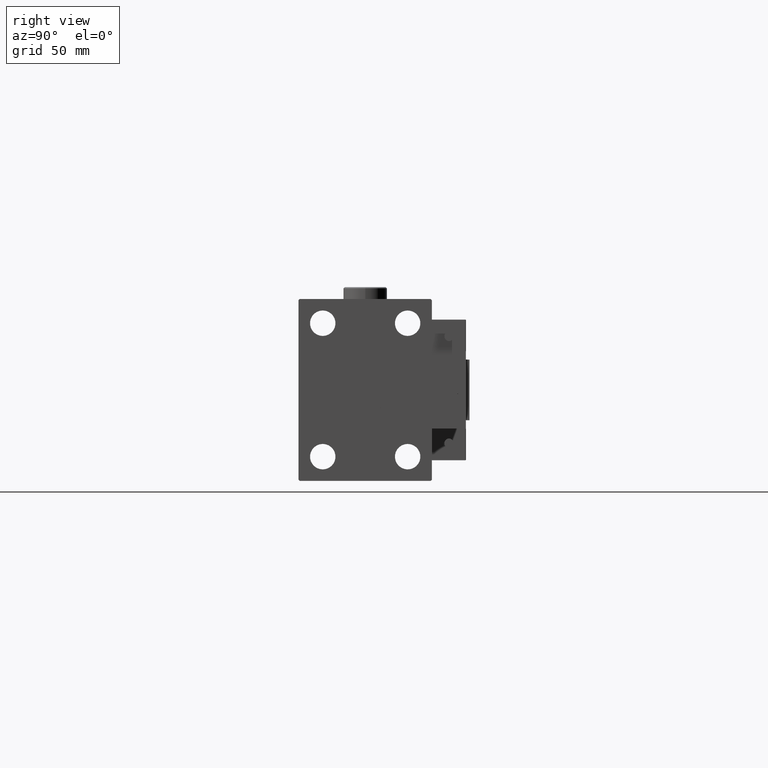
[diagram: clean part render]
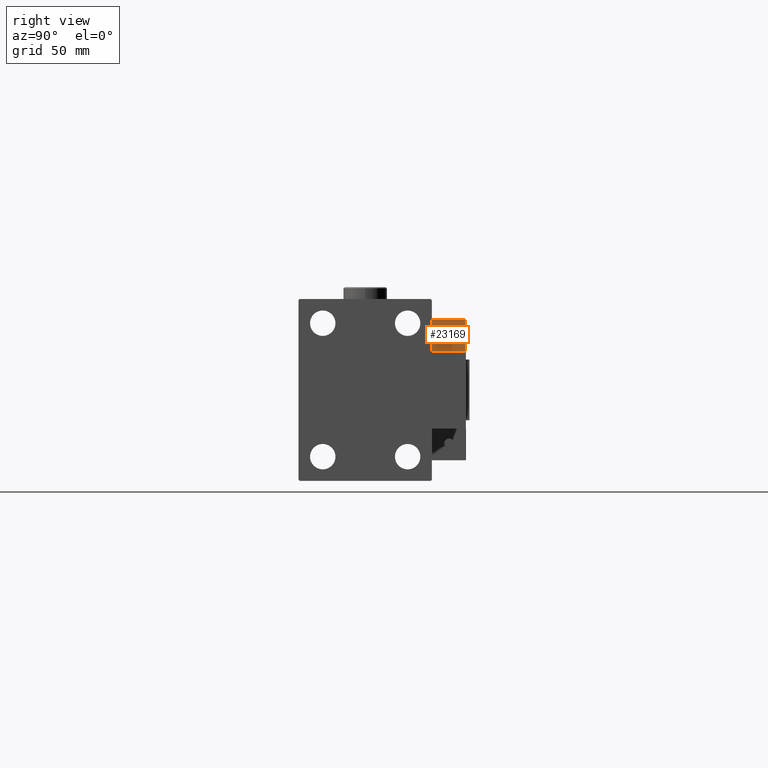
[diagram: same view with one face highlighted and labeled with its STEP entity id]
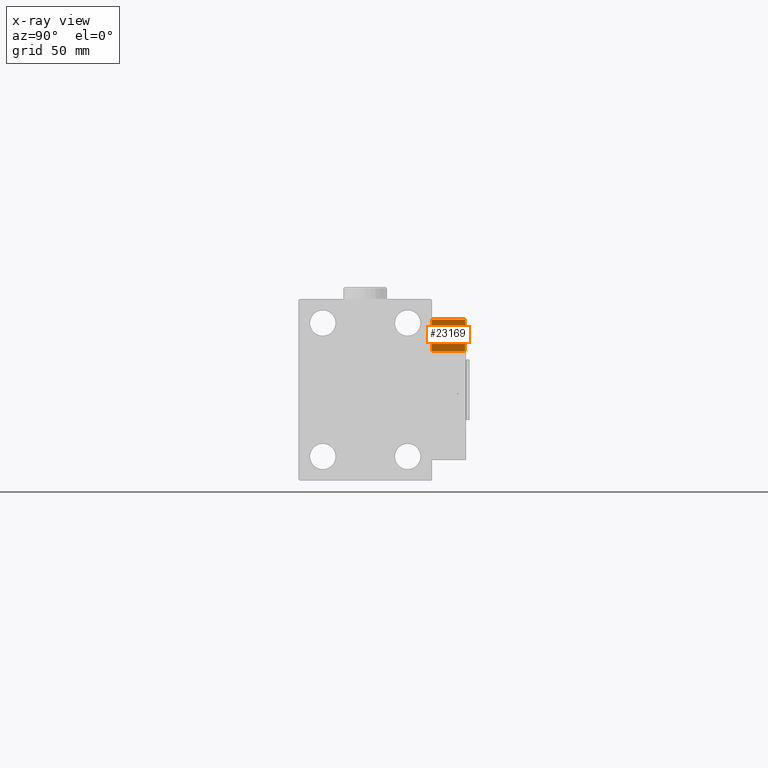
[diagram: x-ray of the same camera — body ghosted, the highlighted face saturated]
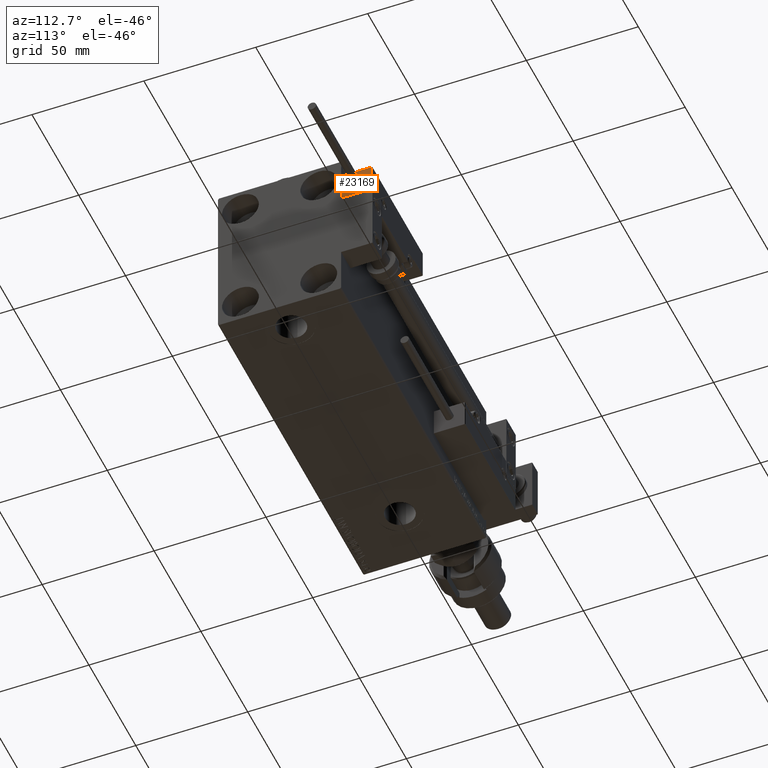
[diagram: same view with one face highlighted and labeled with its STEP entity id]
A machine part, right view. The second image highlights one B-rep face of the part: STEP entity #23169.
The next image is the same camera in x-ray: the body ghosted, the highlighted face saturated — about 6% of this face is hidden behind the body in this view.
A second angle (auxiliary view) of the same face is appended — the face is thin or edge-on in the first view.
In plain terms, the highlighted planar face has unit normal (-1, 0, 0).
Its self-contained STEP definition (entity closure, byte-faithful):
#214 = LINE ( 'NONE', #34318, #27301 ) ;
#811 = EDGE_LOOP ( 'NONE', ( #27473, #13237, #12007, #39391 ) ) ;
#855 = VECTOR ( 'NONE', #11933, 1000.000000000000000 ) ;
#6223 = VERTEX_POINT ( 'NONE', #8670 ) ;
#6402 = CARTESIAN_POINT ( 'NONE',  ( -26.99999999999993605, 20.00000000000002132, 0.000000000000000000 ) ) ;
#8670 = CARTESIAN_POINT ( 'NONE',  ( -26.99999999999993605, 20.00000000000002132, 0.000000000000000000 ) ) ;
#9961 = EDGE_CURVE ( 'NONE', #38342, #6223, #20764, .T. ) ;
#10619 = VECTOR ( 'NONE', #47528, 1000.000000000000000 ) ;
#10641 = FACE_OUTER_BOUND ( 'NONE', #811, .T. ) ;
#10929 = CARTESIAN_POINT ( 'NONE',  ( -26.99999999999993605, 20.00000000000002132, 13.70000000000000107 ) ) ;
#11715 = EDGE_CURVE ( 'NONE', #31703, #49060, #214, .T. ) ;
#11933 = DIRECTION ( 'NONE',  ( -0.000000000000000000, -0.000000000000000000, -1.000000000000000000 ) ) ;
#12007 = ORIENTED_EDGE ( 'NONE', *, *, #9961, .T. ) ;
#13237 = ORIENTED_EDGE ( 'NONE', *, *, #30799, .T. ) ;
#19712 = AXIS2_PLACEMENT_3D ( 'NONE', #31055, #35978, #44213 ) ;
#20764 = LINE ( 'NONE', #24097, #855 ) ;
#22934 = LINE ( 'NONE', #6402, #33579 ) ;
#23169 = ADVANCED_FACE ( 'NONE', ( #10641 ), #27197, .F. ) ;
#23622 = LINE ( 'NONE', #10929, #10619 ) ;
#24097 = CARTESIAN_POINT ( 'NONE',  ( -26.99999999999993605, 20.00000000000002132, 14.00000000000000000 ) ) ;
#27197 = PLANE ( 'NONE',  #19712 ) ;
#27301 = VECTOR ( 'NONE', #42563, 1000.000000000000000 ) ;
#27473 = ORIENTED_EDGE ( 'NONE', *, *, #11715, .F. ) ;
#30210 = CARTESIAN_POINT ( 'NONE',  ( -26.99999999999993605, 20.00000000000002132, 13.70000000000000107 ) ) ;
#30799 = EDGE_CURVE ( 'NONE', #31703, #38342, #23622, .T. ) ;
#31055 = CARTESIAN_POINT ( 'NONE',  ( -26.99999999999993605, 20.00000000000002132, 14.00000000000000000 ) ) ;
#31703 = VERTEX_POINT ( 'NONE', #45118 ) ;
#33579 = VECTOR ( 'NONE', #36403, 1000.000000000000000 ) ;
#34318 = CARTESIAN_POINT ( 'NONE',  ( -26.99999999999994671, 7.000000000000005329, 14.00000000000000000 ) ) ;
#35978 = DIRECTION ( 'NONE',  ( 1.000000000000000000, -8.006416042969869188E-16, 0.000000000000000000 ) ) ;
#36403 = DIRECTION ( 'NONE',  ( -8.006416042969869188E-16, -1.000000000000000000, 0.000000000000000000 ) ) ;
#36756 = EDGE_CURVE ( 'NONE', #6223, #49060, #22934, .T. ) ;
#38342 = VERTEX_POINT ( 'NONE', #30210 ) ;
#39391 = ORIENTED_EDGE ( 'NONE', *, *, #36756, .T. ) ;
#42563 = DIRECTION ( 'NONE',  ( -0.000000000000000000, -0.000000000000000000, -1.000000000000000000 ) ) ;
#44213 = DIRECTION ( 'NONE',  ( 8.006416042969869188E-16, 1.000000000000000000, 0.000000000000000000 ) ) ;
#45118 = CARTESIAN_POINT ( 'NONE',  ( -26.99999999999994671, 7.000000000000005329, 13.70000000000000107 ) ) ;
#45883 = CARTESIAN_POINT ( 'NONE',  ( -26.99999999999994671, 7.000000000000005329, 0.000000000000000000 ) ) ;
#47528 = DIRECTION ( 'NONE',  ( 8.006416042969869188E-16, 1.000000000000000000, -0.000000000000000000 ) ) ;
#49060 = VERTEX_POINT ( 'NONE', #45883 ) ;